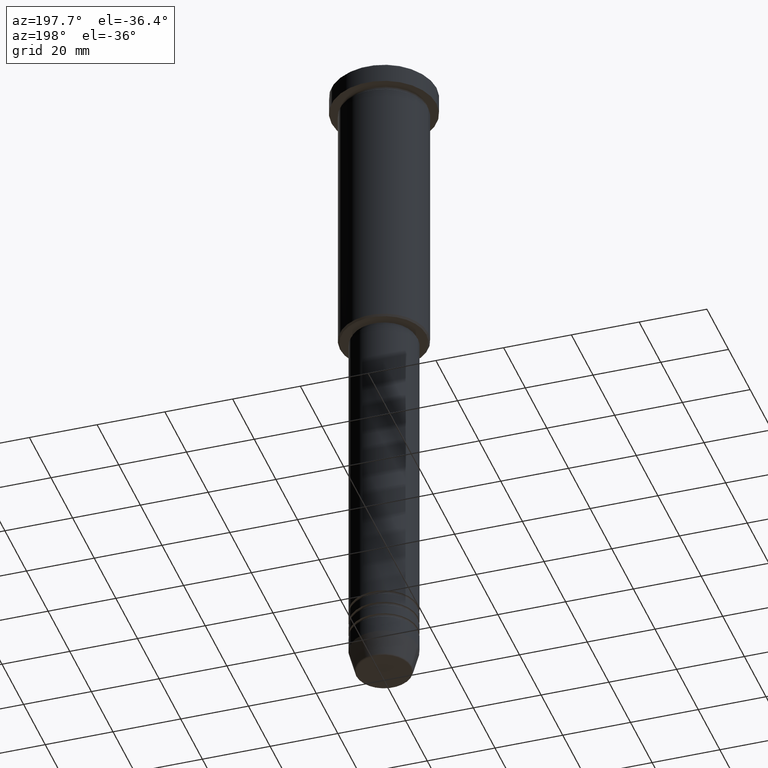
[diagram: clean part render]
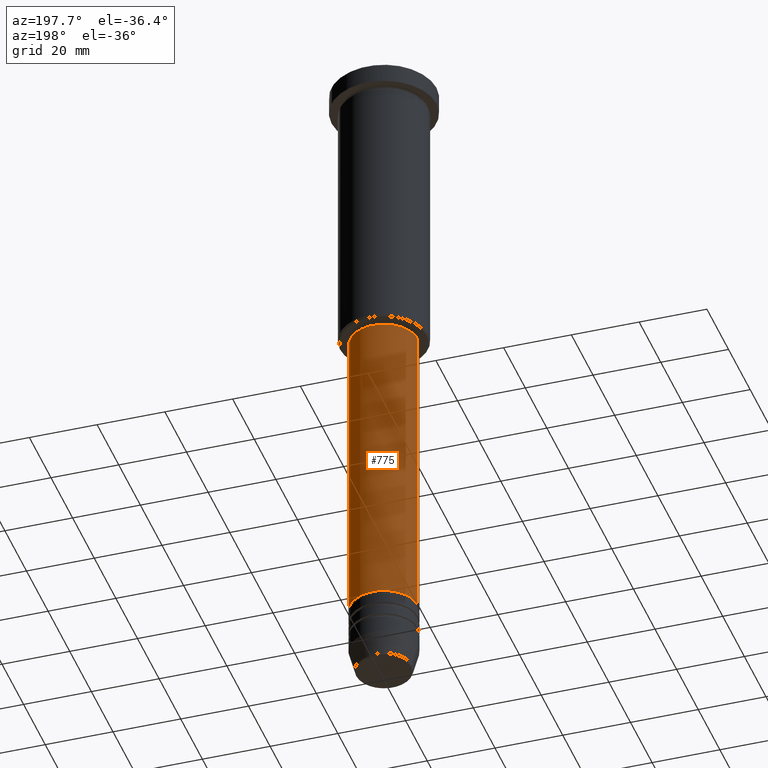
[diagram: same view with one face highlighted and labeled with its STEP entity id]
A machine part, auxiliary view. The second image highlights one B-rep face of the part: STEP entity #775.
In plain terms, the highlighted cylindrical surface (edge-blend (fillet) strip) has radius 10 mm, axis along (-0, -0, 1).
Its self-contained STEP definition (entity closure, byte-faithful):
#69 = DIRECTION ( 'NONE',  ( -0.000000000000000000, -0.000000000000000000, 1.000000000000000000 ) ) ;
#91 = DIRECTION ( 'NONE',  ( -0.000000000000000000, -0.000000000000000000, 1.000000000000000000 ) ) ;
#103 = EDGE_CURVE ( 'NONE', #448, #184, #115, .T. ) ;
#115 = LINE ( 'NONE', #744, #865 ) ;
#180 = CARTESIAN_POINT ( 'NONE',  ( 10.00000000000000178, 0.000000000000000000, -179.9999999999999147 ) ) ;
#184 = VERTEX_POINT ( 'NONE', #226 ) ;
#202 = DIRECTION ( 'NONE',  ( -0.000000000000000000, -0.000000000000000000, 1.000000000000000000 ) ) ;
#226 = CARTESIAN_POINT ( 'NONE',  ( -9.999999999999998224, 1.224646799147353256E-15, -87.00000000000004263 ) ) ;
#273 = EDGE_CURVE ( 'NONE', #1035, #184, #1064, .T. ) ;
#292 = CARTESIAN_POINT ( 'NONE',  ( 0.000000000000000000, 0.000000000000000000, -87.00000000000004263 ) ) ;
#296 = ORIENTED_EDGE ( 'NONE', *, *, #407, .T. ) ;
#360 = FACE_OUTER_BOUND ( 'NONE', #1019, .T. ) ;
#392 = ORIENTED_EDGE ( 'NONE', *, *, #402, .F. ) ;
#402 = EDGE_CURVE ( 'NONE', #460, #1035, #1155, .T. ) ;
#407 = EDGE_CURVE ( 'NONE', #460, #448, #427, .T. ) ;
#427 = CIRCLE ( 'NONE', #648, 10.00000000000000178 ) ;
#430 = AXIS2_PLACEMENT_3D ( 'NONE', #292, #606, #499 ) ;
#448 = VERTEX_POINT ( 'NONE', #450 ) ;
#450 = CARTESIAN_POINT ( 'NONE',  ( -10.00000000000000178, 1.224646799147353454E-15, -179.9999999999999147 ) ) ;
#460 = VERTEX_POINT ( 'NONE', #180 ) ;
#479 = VECTOR ( 'NONE', #680, 1000.000000000000000 ) ;
#499 = DIRECTION ( 'NONE',  ( 1.000000000000000000, 0.000000000000000000, 0.000000000000000000 ) ) ;
#606 = DIRECTION ( 'NONE',  ( -0.000000000000000000, -0.000000000000000000, 1.000000000000000000 ) ) ;
#608 = CARTESIAN_POINT ( 'NONE',  ( 9.999999999999998224, 0.000000000000000000, -87.00000000000004263 ) ) ;
#630 = ORIENTED_EDGE ( 'NONE', *, *, #103, .T. ) ;
#636 = AXIS2_PLACEMENT_3D ( 'NONE', #1090, #91, #1011 ) ;
#648 = AXIS2_PLACEMENT_3D ( 'NONE', #1043, #69, #1094 ) ;
#680 = DIRECTION ( 'NONE',  ( -0.000000000000000000, -0.000000000000000000, 1.000000000000000000 ) ) ;
#702 = CARTESIAN_POINT ( 'NONE',  ( 10.00000000000000000, 0.000000000000000000, 0.000000000000000000 ) ) ;
#744 = CARTESIAN_POINT ( 'NONE',  ( -10.00000000000000000, 1.224646799147353256E-15, 0.000000000000000000 ) ) ;
#775 = ADVANCED_FACE ( 'NONE', ( #360 ), #911, .T. ) ;
#830 = ORIENTED_EDGE ( 'NONE', *, *, #273, .F. ) ;
#865 = VECTOR ( 'NONE', #202, 1000.000000000000000 ) ;
#911 = CYLINDRICAL_SURFACE ( 'NONE', #636, 10.00000000000000000 ) ;
#1011 = DIRECTION ( 'NONE',  ( 1.000000000000000000, 0.000000000000000000, 0.000000000000000000 ) ) ;
#1019 = EDGE_LOOP ( 'NONE', ( #296, #630, #830, #392 ) ) ;
#1035 = VERTEX_POINT ( 'NONE', #608 ) ;
#1043 = CARTESIAN_POINT ( 'NONE',  ( 0.000000000000000000, 0.000000000000000000, -179.9999999999999147 ) ) ;
#1064 = CIRCLE ( 'NONE', #430, 9.999999999999998224 ) ;
#1090 = CARTESIAN_POINT ( 'NONE',  ( 0.000000000000000000, 0.000000000000000000, 0.000000000000000000 ) ) ;
#1094 = DIRECTION ( 'NONE',  ( 1.000000000000000000, 0.000000000000000000, 0.000000000000000000 ) ) ;
#1155 = LINE ( 'NONE', #702, #479 ) ;